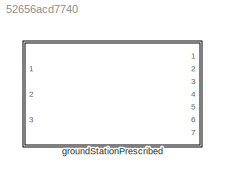
MODEL slx_52656acd7740
KIND library
CONFIG AbsTol = auto
CONFIG EnableMultiTasking = off
CONFIG FixedStep = auto
CONFIG MaxStep = auto
CONFIG MinStep = auto
CONFIG RelTol = 1e-3
CONFIG SampleTimeConstraint = Unconstrained
CONFIG SolverName = VariableStepAuto
CONFIG StartTime = 0.0
CONFIG StopTime = 10.0
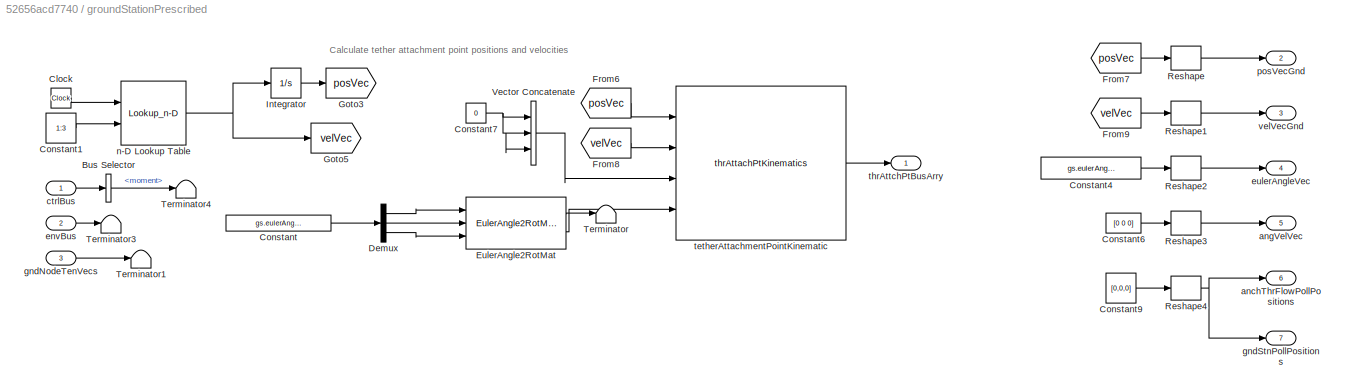
BLOCK [SubSystem] groundStationPrescribed
  Ports = [3, 7]
  RequestExecContextInheritance = off
BLOCK [BusSelector] groundStationPrescribed/Bus Selector
  OutputSignals = moment
  Ports = [1, 1]
BLOCK [Clock] groundStationPrescribed/Clock
BLOCK [Constant] groundStationPrescribed/Constant
  Value = gs.eulerAngVec.Value
BLOCK [Constant] groundStationPrescribed/Constant1
  Value = 1:3
BLOCK [Constant] groundStationPrescribed/Constant4
  Value = gs.eulerAngVec.Value
BLOCK [Constant] groundStationPrescribed/Constant6
  Value = [0 0 0]
BLOCK [Constant] groundStationPrescribed/Constant7
  Value = 0
BLOCK [Constant] groundStationPrescribed/Constant9
  Value = [0,0,0]
BLOCK [Demux] groundStationPrescribed/Demux
  Outputs = 3
  Ports = [1, 3]
BLOCK [Reference] groundStationPrescribed/EulerAngle2RotMat  REF=eulAng2RotMat_ul/EulerAngle2RotMat
  Ports = [3, 2]
  SourceBlock = eulAng2RotMat_ul/EulerAngle2RotMat
  SourceType = SubSystem
BLOCK [From] groundStationPrescribed/From6
  GotoTag = posVec
BLOCK [From] groundStationPrescribed/From7
  GotoTag = posVec
BLOCK [From] groundStationPrescribed/From8
  GotoTag = velVec
BLOCK [From] groundStationPrescribed/From9
  GotoTag = velVec
BLOCK [Goto] groundStationPrescribed/Goto3
  GotoTag = posVec
BLOCK [Goto] groundStationPrescribed/Goto5
  GotoTag = velVec
BLOCK [Integrator] groundStationPrescribed/Integrator
  InitialCondition = gs.initPosVec.Value
  Ports = [1, 1]
BLOCK [Reshape] groundStationPrescribed/Reshape
  OutputDimensionality = Column vector (2-D)
  Ports = [1, 1]
BLOCK [Reshape] groundStationPrescribed/Reshape1
  OutputDimensionality = Column vector (2-D)
  Ports = [1, 1]
BLOCK [Reshape] groundStationPrescribed/Reshape2
  OutputDimensionality = Column vector (2-D)
  Ports = [1, 1]
BLOCK [Reshape] groundStationPrescribed/Reshape3
  OutputDimensionality = Column vector (2-D)
  Ports = [1, 1]
BLOCK [Reshape] groundStationPrescribed/Reshape4
  OutputDimensionality = Column vector (2-D)
  Ports = [1, 1]
BLOCK [Terminator] groundStationPrescribed/Terminator
BLOCK [Terminator] groundStationPrescribed/Terminator1
BLOCK [Terminator] groundStationPrescribed/Terminator3
BLOCK [Terminator] groundStationPrescribed/Terminator4
BLOCK [Concatenate] groundStationPrescribed/Vector Concatenate
  NumInputs = 3
  Ports = [3, 1]
BLOCK [Outport] groundStationPrescribed/anchThrFlowPollPositions
  Port = 6
  VectorParamsAs1DForOutWhenUnconnected = off
BLOCK [Outport] groundStationPrescribed/angVelVec
  Port = 5
  VectorParamsAs1DForOutWhenUnconnected = off
BLOCK [Inport] groundStationPrescribed/ctrlBus
  OutDataTypeStr = Bus: gndStnCtrlBus
BLOCK [Inport] groundStationPrescribed/envBus
  OutDataTypeStr = Bus: envBus
  Port = 2
BLOCK [Outport] groundStationPrescribed/eulerAngleVec
  Port = 4
  VectorParamsAs1DForOutWhenUnconnected = off
BLOCK [Inport] groundStationPrescribed/gndNodeTenVecs
  Port = 3
BLOCK [Outport] groundStationPrescribed/gndStnPollPositions
  Port = 7
  VectorParamsAs1DForOutWhenUnconnected = off
BLOCK [Lookup_n-D] groundStationPrescribed/n-D Lookup Table
  BreakpointsForDimension1 = gs.velVecTrajectory.Value.Time
  BreakpointsForDimension2 = [1:3]
  BreakpointsForDimension3 = [5, 7]
  InputPortMap = u0,u1
  InternalRulePriority = Speed
  Ports = [2, 1]
  RndMeth = Simplest
  Table = gs.velVecTrajectory.Value.Data
BLOCK [Outport] groundStationPrescribed/posVecGnd
  Port = 2
  VectorParamsAs1DForOutWhenUnconnected = off
BLOCK [Reference] groundStationPrescribed/tetherAttachmentPointKinematic  REF=thrAttachPtKinematics_ul/thrAttachPtKinematics
  Ports = [4, 1]
  SourceBlock = thrAttachPtKinematics_ul/thrAttachPtKinematics
BLOCK [Outport] groundStationPrescribed/thrAttchPtBusArry
  VectorParamsAs1DForOutWhenUnconnected = off
BLOCK [Outport] groundStationPrescribed/velVecGnd
  Port = 3
  VectorParamsAs1DForOutWhenUnconnected = off
ANNOTATION groundStationPrescribed: Calculate tether attachment point positions and velocities
LINE groundStationPrescribed/Bus Selector:1 -> groundStationPrescribed/Terminator4:1
LINE groundStationPrescribed/Clock:1 -> groundStationPrescribed/n-D Lookup Table:1
LINE groundStationPrescribed/Constant1:1 -> groundStationPrescribed/n-D Lookup Table:2
LINE groundStationPrescribed/Constant4:1 -> groundStationPrescribed/Reshape2:1
LINE groundStationPrescribed/Constant6:1 -> groundStationPrescribed/Reshape3:1
NET groundStationPrescribed/Constant7:1 -> groundStationPrescribed/Vector Concatenate:1, groundStationPrescribed/Vector Concatenate:2, groundStationPrescribed/Vector Concatenate:3
LINE groundStationPrescribed/Constant9:1 -> groundStationPrescribed/Reshape4:1
LINE groundStationPrescribed/Constant:1 -> groundStationPrescribed/Demux:1
LINE groundStationPrescribed/Demux:1 -> groundStationPrescribed/EulerAngle2RotMat:1
LINE groundStationPrescribed/Demux:2 -> groundStationPrescribed/EulerAngle2RotMat:2
LINE groundStationPrescribed/Demux:3 -> groundStationPrescribed/EulerAngle2RotMat:3
LINE groundStationPrescribed/EulerAngle2RotMat:1 -> groundStationPrescribed/Terminator:1
LINE groundStationPrescribed/EulerAngle2RotMat:2 -> groundStationPrescribed/tetherAttachmentPointKinematic:4
LINE groundStationPrescribed/From6:1 -> groundStationPrescribed/tetherAttachmentPointKinematic:1
LINE groundStationPrescribed/From7:1 -> groundStationPrescribed/Reshape:1
LINE groundStationPrescribed/From8:1 -> groundStationPrescribed/tetherAttachmentPointKinematic:2
LINE groundStationPrescribed/From9:1 -> groundStationPrescribed/Reshape1:1
LINE groundStationPrescribed/Integrator:1 -> groundStationPrescribed/Goto3:1
LINE groundStationPrescribed/Reshape1:1 -> groundStationPrescribed/velVecGnd:1
LINE groundStationPrescribed/Reshape2:1 -> groundStationPrescribed/eulerAngleVec:1
LINE groundStationPrescribed/Reshape3:1 -> groundStationPrescribed/angVelVec:1
NET groundStationPrescribed/Reshape4:1 -> groundStationPrescribed/anchThrFlowPollPositions:1, groundStationPrescribed/gndStnPollPositions:1
LINE groundStationPrescribed/Reshape:1 -> groundStationPrescribed/posVecGnd:1
LINE groundStationPrescribed/Vector Concatenate:1 -> groundStationPrescribed/tetherAttachmentPointKinematic:3
LINE groundStationPrescribed/ctrlBus:1 -> groundStationPrescribed/Bus Selector:1
LINE groundStationPrescribed/envBus:1 -> groundStationPrescribed/Terminator3:1
LINE groundStationPrescribed/gndNodeTenVecs:1 -> groundStationPrescribed/Terminator1:1
NET groundStationPrescribed/n-D Lookup Table:1 -> groundStationPrescribed/Goto5:1, groundStationPrescribed/Integrator:1
LINE groundStationPrescribed/tetherAttachmentPointKinematic:1 -> groundStationPrescribed/thrAttchPtBusArry:1
note: NET lines group one-source signal fan-out (src -> all destinations, sorted); 1:1 wires keep LINE
